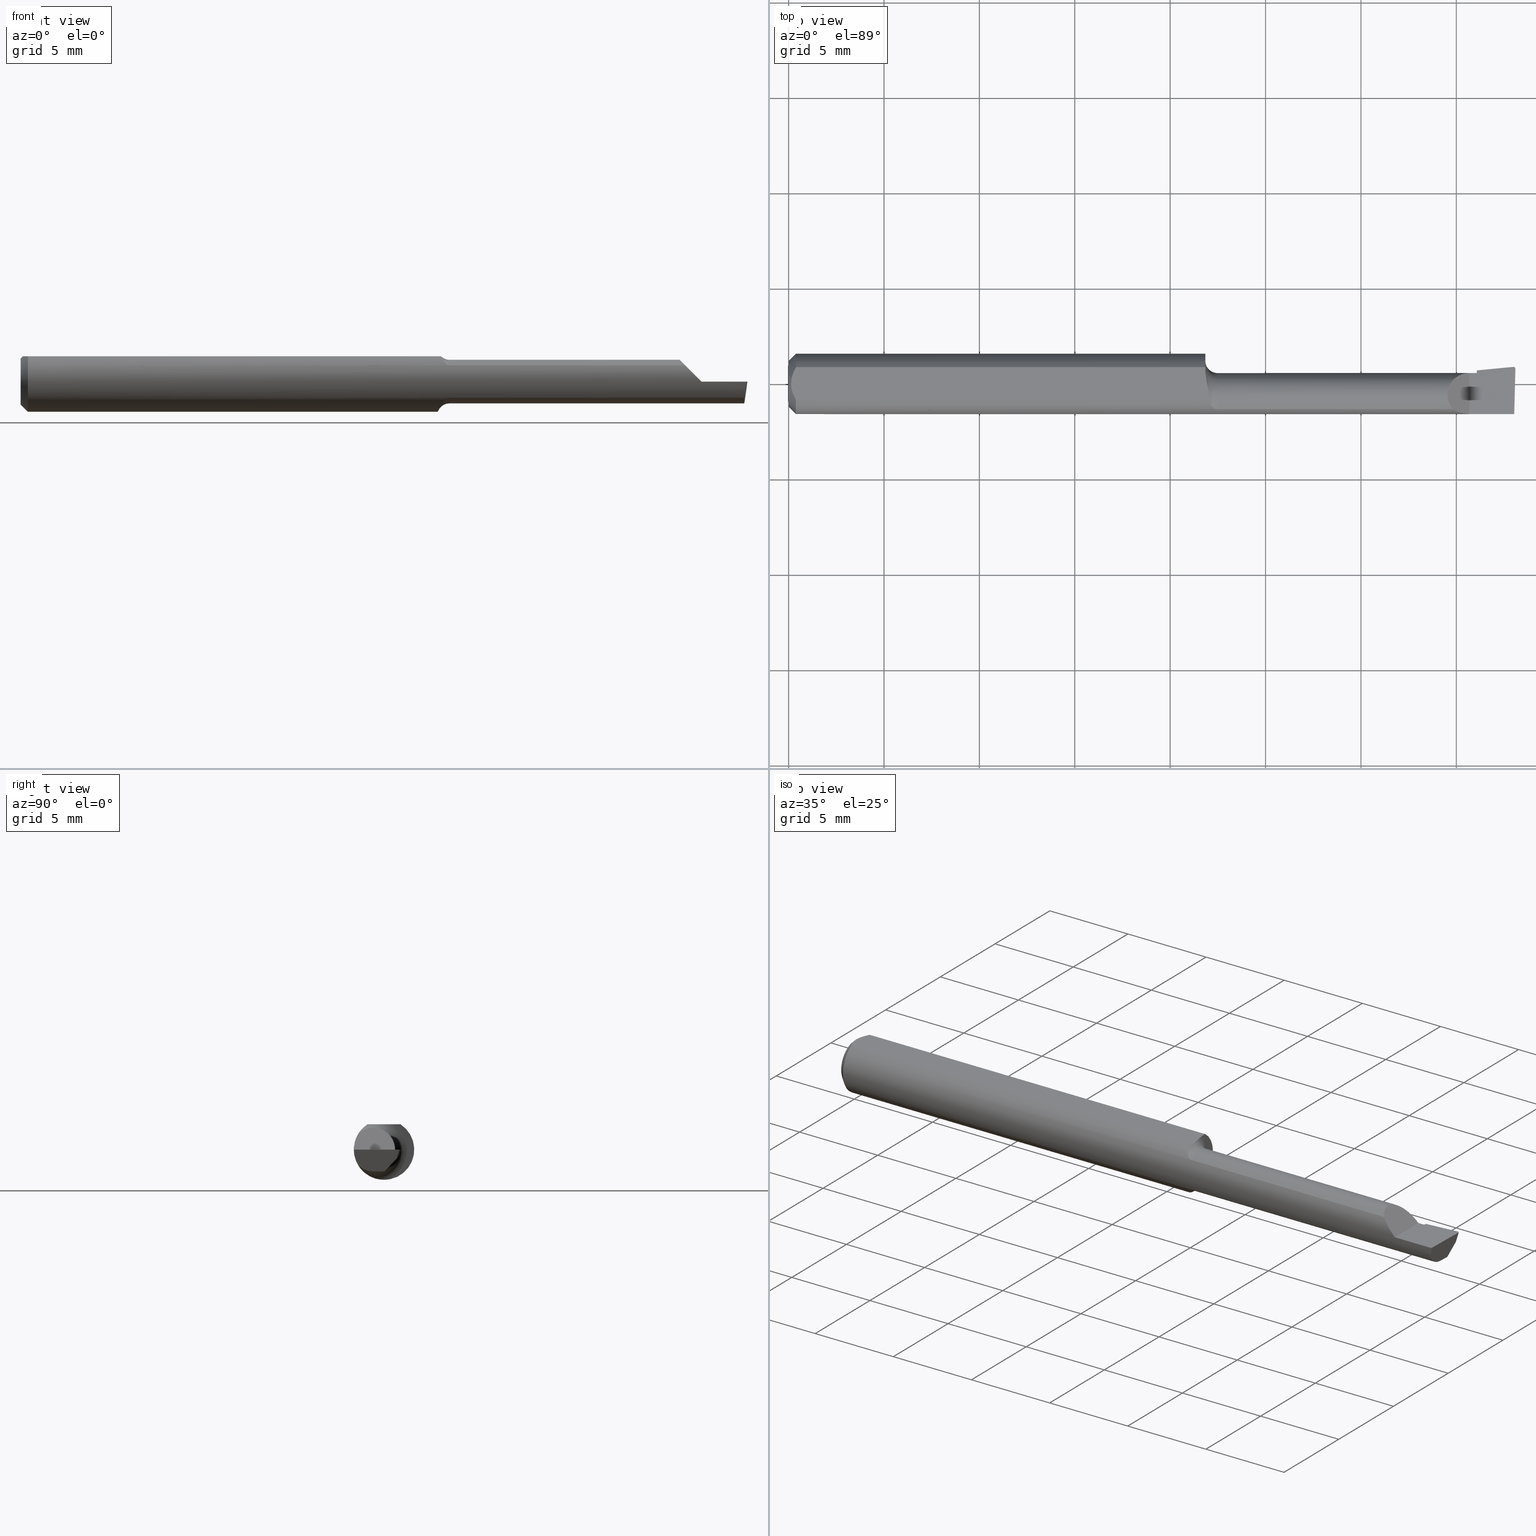
[diagram: canonical four-view strip — front | top / right | iso, engineering-drawing reading convention]
A machine part, canonical four-view strip (front | top / right | iso — engineering-drawing reading convention). The complete STEP part file that produces these views, byte-faithful:
ISO-10303-21;
HEADER;
FILE_DESCRIPTION (( 'STEP AP214' ),
    '1' );
FILE_NAME ('B100600R.STEP',
    '2020-05-08T22:22:54',
    ( '' ),
    ( '' ),
    'SwSTEP 2.0',
    'SolidWorks 2018',
    '' );
FILE_SCHEMA (( 'AUTOMOTIVE_DESIGN' ));
ENDSEC;

DATA;
#1 = CARTESIAN_POINT ( 'NONE',  ( 1.420000000000000151, -0.2500000000000000555, 9.797174393178828616E-18 ) ) ;
#2 = ORIENTED_EDGE ( 'NONE', *, *, #4, .T. ) ;
#3 = DIRECTION ( 'NONE',  ( -0.9922060308645520577, 0.02598182930466777854, 0.1218693434051185687 ) ) ;
#4 = EDGE_CURVE ( 'NONE', #38, #131, #521, .T. ) ;
#5 = CARTESIAN_POINT ( 'NONE',  ( 1.496007920276498648, 0.03524764111161338143, 0.0000000000000000000 ) ) ;
#6 = DIRECTION ( 'NONE',  ( -1.000000000000000000, -5.691349986800549142E-18, 0.0000000000000000000 ) ) ;
#7 = CARTESIAN_POINT ( 'NONE',  ( 0.01500000000000000465, 0.0000000000000000000, -0.06235000000000000264 ) ) ;
#8 = ORIENTED_EDGE ( 'NONE', *, *, #517, .F. ) ;
#9 = ORIENTED_EDGE ( 'NONE', *, *, #179, .F. ) ;
#10 = DIRECTION ( 'NONE',  ( 1.000000000000000000, 5.691349986800549142E-18, 0.0000000000000000000 ) ) ;
#11 =( BOUNDED_CURVE ( )  B_SPLINE_CURVE ( 3, ( #241, #553, #658, #45 ),
 .UNSPECIFIED., .F., .T. ) 
 B_SPLINE_CURVE_WITH_KNOTS ( ( 4, 4 ),
 ( 0.7961532496683325633, 1.360746882514882961 ),
 .UNSPECIFIED. ) 
 CURVE ( )  GEOMETRIC_REPRESENTATION_ITEM ( )  RATIONAL_B_SPLINE_CURVE ( ( 1.000000000000000000, 0.9736121104788257874, 0.9736121104788257874, 1.000000000000000000 ) ) 
 REPRESENTATION_ITEM ( '' )  );
#12 = CONICAL_SURFACE ( 'NONE', #278, 0.06235000000000000264, 0.7853981633974594923 ) ;
#13 = EDGE_CURVE ( 'NONE', #447, #344, #298, .T. ) ;
#14 = AXIS2_PLACEMENT_3D ( 'NONE', #373, #6, #446 ) ;
#15 = VECTOR ( 'NONE', #480, 39.37007874015748854 ) ;
#16 = ORIENTED_EDGE ( 'NONE', *, *, #154, .F. ) ;
#17 = ORIENTED_EDGE ( 'NONE', *, *, #4, .F. ) ;
#18 = EDGE_CURVE ( 'NONE', #490, #111, #426, .T. ) ;
#19 = CARTESIAN_POINT ( 'NONE',  ( 1.500000000000000222, -0.02239999999999999630, -0.04504999999999998589 ) ) ;
#20 = ORIENTED_EDGE ( 'NONE', *, *, #353, .T. ) ;
#21 = CARTESIAN_POINT ( 'NONE',  ( 1.405000000000000249, -0.06235000000000005121, 1.163414459189985436E-17 ) ) ;
#22 = CARTESIAN_POINT ( 'NONE',  ( 0.004999999999989931769, 7.898418181085889318E-16, 0.05235000000000000070 ) ) ;
#23 = CARTESIAN_POINT ( 'NONE',  ( 1.497145952778602185, 0.02443421182165928657, -0.02084524377084977578 ) ) ;
#24 = CARTESIAN_POINT ( 'NONE',  ( 0.8636403934954570705, 0.0002918085034137515572, 0.05234999999999998682 ) ) ;
#25 = CARTESIAN_POINT ( 'NONE',  ( 1.420000000000000151, 0.02794687614419681318, 0.0000000000000000000 ) ) ;
#26 = VECTOR ( 'NONE', #338, 39.37007874015748854 ) ;
#27 = VECTOR ( 'NONE', #268, 39.37007874015748143 ) ;
#28 = VECTOR ( 'NONE', #560, 39.37007874015748143 ) ;
#29 = DIRECTION ( 'NONE',  ( -1.000000000000000000, -5.691349986800549142E-18, -0.0000000000000000000 ) ) ;
#30 =( BOUNDED_CURVE ( )  B_SPLINE_CURVE ( 3, ( #379, #160, #112, #637 ),
 .UNSPECIFIED., .F., .F. ) 
 B_SPLINE_CURVE_WITH_KNOTS ( ( 4, 4 ),
 ( 3.511516179717623753, 3.604018710826140115 ),
 .UNSPECIFIED. ) 
 CURVE ( )  GEOMETRIC_REPRESENTATION_ITEM ( )  RATIONAL_B_SPLINE_CURVE ( ( 1.000000000000000000, 0.9992870672494020834, 0.9992870672494020834, 1.000000000000000000 ) ) 
 REPRESENTATION_ITEM ( '' )  );
#31 = EDGE_LOOP ( 'NONE', ( #647, #53, #75, #109 ) ) ;
#32 = CARTESIAN_POINT ( 'NONE',  ( 0.8681327455766955081, -0.03943215935316556064, -0.04868886658133497053 ) ) ;
#33 = EDGE_CURVE ( 'NONE', #114, #456, #155, .T. ) ;
#34 = DIRECTION ( 'NONE',  ( 1.000000000000000000, 0.0000000000000000000, 0.0000000000000000000 ) ) ;
#35 = EDGE_LOOP ( 'NONE', ( #359, #258, #42 ) ) ;
#36 = SURFACE_STYLE_USAGE ( .BOTH. , #366 ) ;
#37 = ADVANCED_FACE ( 'NONE', ( #139 ), #285, .F. ) ;
#38 = VERTEX_POINT ( 'NONE', #555 ) ;
#39 = VECTOR ( 'NONE', #519, 39.37007874015748143 ) ;
#40 = PLANE ( 'NONE',  #419 ) ;
#41 = VECTOR ( 'NONE', #123, 39.37007874015748854 ) ;
#42 = ORIENTED_EDGE ( 'NONE', *, *, #528, .F. ) ;
#43 = CARTESIAN_POINT ( 'NONE',  ( 1.405000000000000249, -0.2500000000000000555, 1.163414459189985436E-17 ) ) ;
#44 = ORIENTED_EDGE ( 'NONE', *, *, #121, .T. ) ;
#45 = CARTESIAN_POINT ( 'NONE',  ( 1.497433779686218935, -0.06235000000000005121, 3.231995301756451425E-19 ) ) ;
#46 = DIRECTION ( 'NONE',  ( 0.0000000000000000000, 0.0000000000000000000, -1.000000000000000000 ) ) ;
#47 = DIRECTION ( 'NONE',  ( 3.962974135542377331E-18, -0.6963153109074924352, -0.7177360153954949196 ) ) ;
#48 = DIRECTION ( 'NONE',  ( 0.0000000000000000000, 0.9524855432518783971, -0.3045837978228226883 ) ) ;
#49 =( GEOMETRIC_REPRESENTATION_CONTEXT ( 3 ) GLOBAL_UNCERTAINTY_ASSIGNED_CONTEXT ( ( #385 ) ) GLOBAL_UNIT_ASSIGNED_CONTEXT ( ( #129, #242, #249 ) ) REPRESENTATION_CONTEXT ( 'NONE', 'WORKASPACE' ) );
#50 = EDGE_CURVE ( 'NONE', #646, #102, #438, .T. ) ;
#51 = AXIS2_PLACEMENT_3D ( 'NONE', #287, #595, #538 ) ;
#52 = CARTESIAN_POINT ( 'NONE',  ( 0.01500000000000185039, -0.03386738844380016850, 0.05235000000000000070 ) ) ;
#53 = ORIENTED_EDGE ( 'NONE', *, *, #437, .T. ) ;
#54 = ORIENTED_EDGE ( 'NONE', *, *, #13, .T. ) ;
#55 = CARTESIAN_POINT ( 'NONE',  ( 0.0000000000000000000, 0.0000000000000000000, 0.0000000000000000000 ) ) ;
#56 = CARTESIAN_POINT ( 'NONE',  ( 1.420000000000000151, 0.003839959974368444863, -0.03441620828959359585 ) ) ;
#57 = EDGE_CURVE ( 'NONE', #390, #650, #120, .T. ) ;
#58 = LINE ( 'NONE', #466, #635 ) ;
#59 = DIRECTION ( 'NONE',  ( -1.000000000000000000, -5.691349986800549142E-18, -0.0000000000000000000 ) ) ;
#60 = ORIENTED_EDGE ( 'NONE', *, *, #321, .F. ) ;
#61 = ORIENTED_EDGE ( 'NONE', *, *, #400, .T. ) ;
#62 = LINE ( 'NONE', #533, #27 ) ;
#63 = DIRECTION ( 'NONE',  ( 0.0000000000000000000, -1.000000000000000000, 0.0000000000000000000 ) ) ;
#64 = B_SPLINE_CURVE_WITH_KNOTS ( 'NONE', 3,
 ( #467, #100, #515, #200, #255, #621, #568, #311, #675, #364 ),
 .UNSPECIFIED., .F., .F.,
 ( 4, 2, 2, 2, 4 ),
 ( 3.797231421916798275E-07, 0.0004333373953855913481, 0.0006498162315072887087, 0.0007580556495681341905, 0.0008662950676289795640 ),
 .UNSPECIFIED. ) ;
#65 = CARTESIAN_POINT ( 'NONE',  ( 1.510364203804932748, 0.03234793331252792947, -0.01400000000000000376 ) ) ;
#66 = ORIENTED_EDGE ( 'NONE', *, *, #548, .F. ) ;
#67 = CARTESIAN_POINT ( 'NONE',  ( 1.492946566646605078, -0.02239999999999999630, -0.04504999999999998589 ) ) ;
#68 = EDGE_CURVE ( 'NONE', #422, #355, #402, .T. ) ;
#69 = FACE_OUTER_BOUND ( 'NONE', #449, .T. ) ;
#70 = CARTESIAN_POINT ( 'NONE',  ( 0.006064493299689842180, 0.01189382783781397189, 0.05235000000000000070 ) ) ;
#71 = CARTESIAN_POINT ( 'NONE',  ( 1.500000000000000222, 0.1123499999999999915, 0.05234999999999998682 ) ) ;
#72 = AXIS2_PLACEMENT_3D ( 'NONE', #375, #673, #363 ) ;
#73 = PLANE ( 'NONE',  #86 ) ;
#74 = LINE ( 'NONE', #624, #341 ) ;
#75 = ORIENTED_EDGE ( 'NONE', *, *, #535, .T. ) ;
#76 = ORIENTED_EDGE ( 'NONE', *, *, #167, .T. ) ;
#77 = PLANE ( 'NONE',  #14 ) ;
#78 = DIRECTION ( 'NONE',  ( 0.0000000000000000000, 1.000000000000000000, 0.0000000000000000000 ) ) ;
#79 = DIRECTION ( 'NONE',  ( -0.1240019227988994888, -0.3022330132596628971, -0.9451342385281363834 ) ) ;
#80 = LINE ( 'NONE', #421, #28 ) ;
#81 = ORIENTED_EDGE ( 'NONE', *, *, #68, .F. ) ;
#82 = AXIS2_PLACEMENT_3D ( 'NONE', #130, #333, #404 ) ;
#83 = EDGE_CURVE ( 'NONE', #600, #439, #30, .T. ) ;
#84 = CARTESIAN_POINT ( 'NONE',  ( 0.8787757133464818571, -0.05116520334387907737, -0.03564627526859109191 ) ) ;
#85 = PRESENTATION_STYLE_ASSIGNMENT (( #603 ) ) ;
#86 = AXIS2_PLACEMENT_3D ( 'NONE', #571, #575, #468 ) ;
#87 = EDGE_LOOP ( 'NONE', ( #573, #126, #229, #243, #667, #617 ) ) ;
#88 = CARTESIAN_POINT ( 'NONE',  ( 0.8627289934230482071, -0.02215482600002543698, -0.05866202889160986034 ) ) ;
#89 = CARTESIAN_POINT ( 'NONE',  ( 0.8600000000000000977, 0.1123499999999999915, 0.05234999999999998682 ) ) ;
#90 = EDGE_CURVE ( 'NONE', #454, #638, #345, .T. ) ;
#91 = ORIENTED_EDGE ( 'NONE', *, *, #643, .T. ) ;
#92 = DIRECTION ( 'NONE',  ( -1.000000000000000000, -5.691349986800549142E-18, -0.0000000000000000000 ) ) ;
#93 = ADVANCED_FACE ( 'NONE', ( #163 ), #429, .T. ) ;
#94 = VECTOR ( 'NONE', #593, 39.37007874015748143 ) ;
#95 = CARTESIAN_POINT ( 'NONE',  ( 0.01500000000000185039, -0.03386738844380016850, 0.05235000000000000070 ) ) ;
#96 = VERTEX_POINT ( 'NONE', #532 ) ;
#97 = ORIENTED_EDGE ( 'NONE', *, *, #117, .F. ) ;
#98 = CARTESIAN_POINT ( 'NONE',  ( 1.493798075755717214, 0.03075279661035064047, -0.01400000000000000376 ) ) ;
#99 = CARTESIAN_POINT ( 'NONE',  ( 0.01500000000000000465, 0.0000000000000000000, -0.06235000000000000264 ) ) ;
#100 = CARTESIAN_POINT ( 'NONE',  ( 0.8678735227475141700, -0.03849383661596396389, 0.04935695859860206314 ) ) ;
#101 = AXIS2_PLACEMENT_3D ( 'NONE', #71, #493, #170 ) ;
#102 = VERTEX_POINT ( 'NONE', #219 ) ;
#103 = CARTESIAN_POINT ( 'NONE',  ( 0.8661821896890746775, -0.03386738844375222074, 0.05235000000000000070 ) ) ;
#104 =( NAMED_UNIT ( * ) PLANE_ANGLE_UNIT ( ) SI_UNIT ( $, .RADIAN. ) );
#105 = CARTESIAN_POINT ( 'NONE',  ( 0.01216137397042175820, -0.02864146636719541034, 0.05235000000000000070 ) ) ;
#106 = EDGE_CURVE ( 'NONE', #96, #490, #62, .T. ) ;
#107 = DIRECTION ( 'NONE',  ( 0.7071067811865395791, 8.659560562355030233E-17, 0.7071067811865554553 ) ) ;
#108 = VERTEX_POINT ( 'NONE', #187 ) ;
#109 = ORIENTED_EDGE ( 'NONE', *, *, #654, .F. ) ;
#110 = LINE ( 'NONE', #202, #39 ) ;
#111 = VERTEX_POINT ( 'NONE', #220 ) ;
#112 = CARTESIAN_POINT ( 'NONE',  ( 1.495759144559519527, 0.03524165206609278927, 8.547915732267098835E-18 ) ) ;
#113 = CIRCLE ( 'NONE', #497, 0.07004999999999993177 ) ;
#114 = VERTEX_POINT ( 'NONE', #7 ) ;
#115 = ORIENTED_EDGE ( 'NONE', *, *, #388, .F. ) ;
#116 = LENGTH_MEASURE_WITH_UNIT ( LENGTH_MEASURE( 0.02539999999999999897 ), #225 );
#117 = EDGE_CURVE ( 'NONE', #318, #344, #149, .T. ) ;
#118 = CARTESIAN_POINT ( 'NONE',  ( 1.420000000000000151, -0.02239999999999999630, 0.0000000000000000000 ) ) ;
#119 = ORIENTED_EDGE ( 'NONE', *, *, #659, .T. ) ;
#120 = LINE ( 'NONE', #157, #329 ) ;
#121 = EDGE_CURVE ( 'NONE', #456, #185, #642, .T. ) ;
#122 = ORIENTED_EDGE ( 'NONE', *, *, #283, .T. ) ;
#123 = DIRECTION ( 'NONE',  ( -0.9953961983671800740, -0.09584575252021028391, 2.116984158397003268E-18 ) ) ;
#124 = ORIENTED_EDGE ( 'NONE', *, *, #68, .T. ) ;
#125 = VECTOR ( 'NONE', #411, 39.37007874015748143 ) ;
#126 = ORIENTED_EDGE ( 'NONE', *, *, #18, .F. ) ;
#127 = PRODUCT_DEFINITION_SHAPE ( 'NONE', 'NONE',  #399 ) ;
#128 = VERTEX_POINT ( 'NONE', #148 ) ;
#129 =( CONVERSION_BASED_UNIT ( 'INCH', #116 ) LENGTH_UNIT ( ) NAMED_UNIT ( #416 ) );
#130 = CARTESIAN_POINT ( 'NONE',  ( 1.509953961983671933, 0.03660845752520203861, 0.0000000000000000000 ) ) ;
#131 = VERTEX_POINT ( 'NONE', #475 ) ;
#132 = CARTESIAN_POINT ( 'NONE',  ( 1.494167560590867749, 0.03076208604347172026, -0.01402709660331438214 ) ) ;
#133 = CARTESIAN_POINT ( 'NONE',  ( 0.8602764403634772794, -0.002103274276246023915, -0.06268864719924562012 ) ) ;
#134 = ORIENTED_EDGE ( 'NONE', *, *, #135, .T. ) ;
#135 = EDGE_CURVE ( 'NONE', #239, #447, #80, .T. ) ;
#136 =( BOUNDED_CURVE ( )  B_SPLINE_CURVE ( 3, ( #201, #206, #256, #253 ),
 .UNSPECIFIED., .F., .F. ) 
 B_SPLINE_CURVE_WITH_KNOTS ( ( 4, 4 ),
 ( 3.156599629463156642, 4.715023529952364179 ),
 .UNSPECIFIED. ) 
 CURVE ( )  GEOMETRIC_REPRESENTATION_ITEM ( )  RATIONAL_B_SPLINE_CURVE ( ( 1.000000000000000000, 0.8076450242550528014, 0.8076450242550528014, 1.000000000000000000 ) ) 
 REPRESENTATION_ITEM ( '' )  );
#137 = DIRECTION ( 'NONE',  ( 1.000000000000000000, 5.691349986800549142E-18, 0.0000000000000000000 ) ) ;
#138 = ORIENTED_EDGE ( 'NONE', *, *, #321, .T. ) ;
#139 = FACE_OUTER_BOUND ( 'NONE', #458, .T. ) ;
#140 = ORIENTED_EDGE ( 'NONE', *, *, #491, .T. ) ;
#141 = ADVANCED_FACE ( 'NONE', ( #484 ), #403, .F. ) ;
#142 = CARTESIAN_POINT ( 'NONE',  ( 1.405000000000000249, -0.06235000000000005121, 1.163414459189985436E-17 ) ) ;
#143 = AXIS2_PLACEMENT_3D ( 'NONE', #314, #3, #207 ) ;
#144 = DIRECTION ( 'NONE',  ( 1.000000000000000000, 5.691349986800549142E-18, 0.0000000000000000000 ) ) ;
#145 = STYLED_ITEM ( 'NONE', ( #85 ), #578 ) ;
#146 = EDGE_CURVE ( 'NONE', #372, #318, #262, .T. ) ;
#147 = CARTESIAN_POINT ( 'NONE',  ( 0.8599999999999998757, 0.01903747135664263929, 0.05235000000000001458 ) ) ;
#148 = CARTESIAN_POINT ( 'NONE',  ( 1.499880855614015740, 0.03110005946548960454, 2.797005382439232540E-20 ) ) ;
#149 =( BOUNDED_CURVE ( )  B_SPLINE_CURVE ( 3, ( #152, #577, #526, #264 ),
 .UNSPECIFIED., .F., .T. ) 
 B_SPLINE_CURVE_WITH_KNOTS ( ( 4, 4 ),
 ( 5.546277306536648410, 7.853981633974482790 ),
 .UNSPECIFIED. ) 
 CURVE ( )  GEOMETRIC_REPRESENTATION_ITEM ( )  RATIONAL_B_SPLINE_CURVE ( ( 1.000000000000000000, 0.6033122017619977351, 0.6033122017619977351, 1.000000000000000000 ) ) 
 REPRESENTATION_ITEM ( '' )  );
#150 = ORIENTED_EDGE ( 'NONE', *, *, #528, .T. ) ;
#151 = DIRECTION ( 'NONE',  ( -1.224646799147353947E-16, 0.0000000000000000000, -1.000000000000000000 ) ) ;
#152 = CARTESIAN_POINT ( 'NONE',  ( 1.371638225962093838, -0.05267366071428594004, 0.03336177403790593909 ) ) ;
#153 = ORIENTED_EDGE ( 'NONE', *, *, #602, .T. ) ;
#154 = EDGE_CURVE ( 'NONE', #454, #597, #266, .T. ) ;
#155 = CIRCLE ( 'NONE', #337, 0.06235000000000000264 ) ;
#156 = CARTESIAN_POINT ( 'NONE',  ( 1.493922339957150847, 0.03076476189203172784, -0.01400000000000001764 ) ) ;
#157 = CARTESIAN_POINT ( 'NONE',  ( 1.152500000000000080, -0.05267366071428578739, -0.03336177403790609869 ) ) ;
#158 = CYLINDRICAL_SURFACE ( 'NONE', #431, 0.004000000000000000083 ) ;
#159 = FACE_OUTER_BOUND ( 'NONE', #334, .T. ) ;
#160 = CARTESIAN_POINT ( 'NONE',  ( 1.495883579913029671, 0.03524764111161338836, 8.532676796529436165E-18 ) ) ;
#161 = CYLINDRICAL_SURFACE ( 'NONE', #622, 0.04504999999999996507 ) ;
#162 = DIRECTION ( 'NONE',  ( -5.691349986800549142E-18, 1.000000000000000000, 0.0000000000000000000 ) ) ;
#163 = FACE_OUTER_BOUND ( 'NONE', #280, .T. ) ;
#164 = ORIENTED_EDGE ( 'NONE', *, *, #33, .T. ) ;
#165 = ORIENTED_EDGE ( 'NONE', *, *, #474, .T. ) ;
#166 = CARTESIAN_POINT ( 'NONE',  ( 1.492874371667013866, -0.04428776192107812537, -0.04097143695815293196 ) ) ;
#167 = EDGE_CURVE ( 'NONE', #183, #102, #110, .T. ) ;
#168 = CARTESIAN_POINT ( 'NONE',  ( 1.492650040401416689, -0.03372388044486962499, -0.04504999999999997201 ) ) ;
#169 = DIRECTION ( 'NONE',  ( 1.000000000000000000, 5.691349986800549142E-18, 0.0000000000000000000 ) ) ;
#170 = DIRECTION ( 'NONE',  ( 0.0000000000000000000, 1.000000000000000000, -7.598598113218357399E-17 ) ) ;
#171 = AXIS2_PLACEMENT_3D ( 'NONE', #215, #579, #273 ) ;
#172 = VECTOR ( 'NONE', #625, 39.37007874015748143 ) ;
#173 = LINE ( 'NONE', #343, #41 ) ;
#174 = ORIENTED_EDGE ( 'NONE', *, *, #517, .T. ) ;
#175 = ORIENTED_EDGE ( 'NONE', *, *, #502, .F. ) ;
#176 = PLANE ( 'NONE',  #598 ) ;
#177 = PRESENTATION_LAYER_ASSIGNMENT (  '', '', ( #145 ) ) ;
#178 = ORIENTED_EDGE ( 'NONE', *, *, #353, .F. ) ;
#179 = EDGE_CURVE ( 'NONE', #646, #108, #445, .T. ) ;
#180 = CARTESIAN_POINT ( 'NONE',  ( 0.8600000000000000977, -0.02239999999999999977, 0.0000000000000000000 ) ) ;
#181 = APPLICATION_PROTOCOL_DEFINITION ( 'draft international standard', 'automotive_design', 1998, #639 ) ;
#182 = CARTESIAN_POINT ( 'NONE',  ( 0.8600000000000000977, 0.01155624999999977677, -0.06126969549408178839 ) ) ;
#183 = VERTEX_POINT ( 'NONE', #257 ) ;
#184 = DIRECTION ( 'NONE',  ( 5.691349986800549142E-18, -1.000000000000000000, 7.598598113218357399E-17 ) ) ;
#185 = VERTEX_POINT ( 'NONE', #205 ) ;
#186 = EDGE_CURVE ( 'NONE', #239, #128, #209, .T. ) ;
#187 = CARTESIAN_POINT ( 'NONE',  ( 1.420000000000000151, 0.02794687614419801361, 1.835460370743176819E-16 ) ) ;
#188 = ADVANCED_FACE ( 'NONE', ( #478 ), #628, .F. ) ;
#189 = CARTESIAN_POINT ( 'NONE',  ( 0.0000000000000000000, 0.0000000000000000000, 0.0000000000000000000 ) ) ;
#190 = ORIENTED_EDGE ( 'NONE', *, *, #186, .F. ) ;
#191 = CARTESIAN_POINT ( 'NONE',  ( 1.420000000000000151, -0.001476535193823043943, -0.03989625446711346501 ) ) ;
#192 = ADVANCED_FACE ( 'NONE', ( #69 ), #423, .F. ) ;
#193 = FACE_OUTER_BOUND ( 'NONE', #590, .T. ) ;
#194 = DIRECTION ( 'NONE',  ( -1.000000000000000000, -5.691349986800549142E-18, -0.0000000000000000000 ) ) ;
#195 = ORIENTED_EDGE ( 'NONE', *, *, #331, .T. ) ;
#196 = DIRECTION ( 'NONE',  ( -1.000000000000000000, -0.0000000000000000000, -0.0000000000000000000 ) ) ;
#197 = ORIENTED_EDGE ( 'NONE', *, *, #425, .F. ) ;
#198 = CARTESIAN_POINT ( 'NONE',  ( 0.01500000000000000465, 0.0000000000000000000, 0.0000000000000000000 ) ) ;
#199 = CARTESIAN_POINT ( 'NONE',  ( 0.01218518006020415795, 0.02868529347538067639, 0.05235000000000000070 ) ) ;
#200 = CARTESIAN_POINT ( 'NONE',  ( 0.8740738374070420313, -0.04761084945882115144, 0.04033650601908230632 ) ) ;
#201 = CARTESIAN_POINT ( 'NONE',  ( 1.494167560590867749, 0.03076208604347172026, -0.01402709660331438214 ) ) ;
#202 = CARTESIAN_POINT ( 'NONE',  ( 1.420000000000000151, 0.003839959974368444863, -0.03441620828959359585 ) ) ;
#203 = COLOUR_RGB ( '',0.7529411764705882248, 0.7529411764705882248, 0.7529411764705882248 ) ;
#204 = EDGE_LOOP ( 'NONE', ( #541, #119, #174, #150 ) ) ;
#205 = CARTESIAN_POINT ( 'NONE',  ( 0.004999999999989931769, 7.898418181085889318E-16, 0.05235000000000000070 ) ) ;
#206 = CARTESIAN_POINT ( 'NONE',  ( 1.496461277308440030, 0.03065349357661047158, -0.01436668378927336530 ) ) ;
#207 = DIRECTION ( 'NONE',  ( 0.1219104985252538603, 0.0000000000000000000, 0.9925410975618711440 ) ) ;
#208 = ORIENTED_EDGE ( 'NONE', *, *, #83, .F. ) ;
#209 = LINE ( 'NONE', #367, #604 ) ;
#210 = EDGE_CURVE ( 'NONE', #102, #454, #551, .T. ) ;
#211 = CARTESIAN_POINT ( 'NONE',  ( 0.009669996313769784607, 0.02323004575534281385, 0.05234999999999998682 ) ) ;
#212 = DIRECTION ( 'NONE',  ( -1.000000000000000000, 0.0000000000000000000, 1.224646799147353947E-16 ) ) ;
#213 = EDGE_LOOP ( 'NONE', ( #296, #614, #76, #504 ) ) ;
#214 = UNCERTAINTY_MEASURE_WITH_UNIT (LENGTH_MEASURE( 1.000000000000000082E-05 ), #668, 'distance_accuracy_value', 'NONE');
#215 = CARTESIAN_POINT ( 'NONE',  ( 0.0000000000000000000, 0.0000000000000000000, 0.0000000000000000000 ) ) ;
#216 = VECTOR ( 'NONE', #669, 39.37007874015748143 ) ;
#217 = ORIENTED_EDGE ( 'NONE', *, *, #294, .T. ) ;
#218 = AXIS2_PLACEMENT_3D ( 'NONE', #319, #151, #212 ) ;
#219 = CARTESIAN_POINT ( 'NONE',  ( 1.420000000000000151, 0.01811171944543690446, -0.01970540757188763911 ) ) ;
#220 = CARTESIAN_POINT ( 'NONE',  ( 0.8600000000000000977, 0.02414546164772663275, 0.05235000000000000070 ) ) ;
#221 = EDGE_LOOP ( 'NONE', ( #124, #20, #190, #476, #424, #587 ) ) ;
#222 = MECHANICAL_DESIGN_GEOMETRIC_PRESENTATION_REPRESENTATION (  '', ( #145 ), #259 ) ;
#223 = COLOUR_RGB ( '',0.7529411764705882248, 0.7529411764705882248, 0.7529411764705882248 ) ;
#224 = EDGE_CURVE ( 'NONE', #131, #38, #629, .T. ) ;
#225 =( LENGTH_UNIT ( ) NAMED_UNIT ( * ) SI_UNIT ( $, .METRE. ) );
#226 = CARTESIAN_POINT ( 'NONE',  ( 0.8850000000000001199, -0.05267366071428589841, 0.03336177403790596685 ) ) ;
#227 = EDGE_CURVE ( 'NONE', #38, #185, #591, .T. ) ;
#228 = APPLICATION_PROTOCOL_DEFINITION ( 'draft international standard', 'automotive_design', 1998, #263 ) ;
#229 = ORIENTED_EDGE ( 'NONE', *, *, #106, .F. ) ;
#230 = DIRECTION ( 'NONE',  ( 0.1240019227988994610, 0.3022330132596628416, 0.9451342385281363834 ) ) ;
#231 = FACE_OUTER_BOUND ( 'NONE', #213, .T. ) ;
#232 = CARTESIAN_POINT ( 'NONE',  ( -2.563953169053420290E-19, 0.02264999999999995489, 1.836970198721030427E-16 ) ) ;
#233 = LINE ( 'NONE', #620, #94 ) ;
#234 = CARTESIAN_POINT ( 'NONE',  ( 1.381685276638327631, -0.05903713403021961653, 0.02331472336167206283 ) ) ;
#235 = ORIENTED_EDGE ( 'NONE', *, *, #643, .F. ) ;
#236 = CARTESIAN_POINT ( 'NONE',  ( 1.420000000000000151, 0.02442187865123201032, -0.01147666661066421533 ) ) ;
#237 = CIRCLE ( 'NONE', #251, 0.06235000000000000264 ) ;
#238 = ORIENTED_EDGE ( 'NONE', *, *, #13, .F. ) ;
#239 = VERTEX_POINT ( 'NONE', #529 ) ;
#240 = CARTESIAN_POINT ( 'NONE',  ( 1.498346190944504830, 0.03524764111161336061, 8.231093924805310805E-18 ) ) ;
#241 = CARTESIAN_POINT ( 'NONE',  ( 1.493589448587071544, -0.05267366071428578739, -0.03336177403790609869 ) ) ;
#242 =( NAMED_UNIT ( * ) PLANE_ANGLE_UNIT ( ) SI_UNIT ( $, .RADIAN. ) );
#243 = ORIENTED_EDGE ( 'NONE', *, *, #474, .F. ) ;
#244 = EDGE_CURVE ( 'NONE', #539, #325, #279, .T. ) ;
#245 = SURFACE_STYLE_FILL_AREA ( #630 ) ;
#246 = ADVANCED_FACE ( 'NONE', ( #159 ), #354, .T. ) ;
#247 = CARTESIAN_POINT ( 'NONE',  ( 0.8639433730835746061, -0.0009488278625737159733, 0.05234999999999998682 ) ) ;
#248 = EDGE_LOOP ( 'NONE', ( #208, #284, #492, #320 ) ) ;
#249 =( NAMED_UNIT ( * ) SI_UNIT ( $, .STERADIAN. ) SOLID_ANGLE_UNIT ( ) );
#250 = ADVANCED_FACE ( 'NONE', ( #271 ), #158, .T. ) ;
#251 = AXIS2_PLACEMENT_3D ( 'NONE', #448, #395, #78 ) ;
#252 = DIRECTION ( 'NONE',  ( 0.0000000000000000000, 0.0000000000000000000, -1.000000000000000000 ) ) ;
#253 = CARTESIAN_POINT ( 'NONE',  ( 1.497145952778602185, 0.02443421182165928657, -0.02084524377084977578 ) ) ;
#254 = ORIENTED_EDGE ( 'NONE', *, *, #146, .F. ) ;
#255 = CARTESIAN_POINT ( 'NONE',  ( 0.8756610829636815030, -0.04915643512136039922, 0.03841395140597850949 ) ) ;
#256 = CARTESIAN_POINT ( 'NONE',  ( 1.497690526998707305, 0.02804183703948718784, -0.01718068703854501098 ) ) ;
#257 = CARTESIAN_POINT ( 'NONE',  ( 1.420000000000000151, 0.02364685013702381988, -0.01400000000000000203 ) ) ;
#258 = ORIENTED_EDGE ( 'NONE', *, *, #154, .T. ) ;
#259 =( GEOMETRIC_REPRESENTATION_CONTEXT ( 3 ) GLOBAL_UNCERTAINTY_ASSIGNED_CONTEXT ( ( #214 ) ) GLOBAL_UNIT_ASSIGNED_CONTEXT ( ( #668, #104, #304 ) ) REPRESENTATION_CONTEXT ( 'NONE', 'WORKASPACE' ) );
#260 = EDGE_CURVE ( 'NONE', #600, #325, #306, .T. ) ;
#261 = DIRECTION ( 'NONE',  ( -1.000000000000000000, -0.0000000000000000000, -0.0000000000000000000 ) ) ;
#262 = LINE ( 'NONE', #469, #572 ) ;
#263 = APPLICATION_CONTEXT ( 'automotive_design' ) ;
#264 = CARTESIAN_POINT ( 'NONE',  ( 1.405000000000000249, 0.02264999999999992714, 1.163414459189985436E-17 ) ) ;
#265 = CIRCLE ( 'NONE', #564, 0.04504999999999993732 ) ;
#266 = LINE ( 'NONE', #418, #663 ) ;
#267 = PLANE ( 'NONE',  #547 ) ;
#268 = DIRECTION ( 'NONE',  ( 1.000000000000000000, 0.0000000000000000000, 0.0000000000000000000 ) ) ;
#269 = B_SPLINE_CURVE_WITH_KNOTS ( 'NONE', 3,
 ( #22, #420, #70, #211, #199, #370 ),
 .UNSPECIFIED., .F., .F.,
 ( 4, 2, 4 ),
 ( 0.003037199019464981685, 0.003488061124369676216, 0.003938923229274370746 ),
 .UNSPECIFIED. ) ;
#270 = EDGE_CURVE ( 'NONE', #128, #600, #398, .T. ) ;
#271 = FACE_OUTER_BOUND ( 'NONE', #465, .T. ) ;
#272 = ORIENTED_EDGE ( 'NONE', *, *, #425, .T. ) ;
#273 = DIRECTION ( 'NONE',  ( 0.0000000000000000000, 0.0000000000000000000, 1.000000000000000000 ) ) ;
#274 = ORIENTED_EDGE ( 'NONE', *, *, #90, .T. ) ;
#275 = CARTESIAN_POINT ( 'NONE',  ( 1.420000000000000151, -0.02239999999999999630, 0.0000000000000000000 ) ) ;
#276 = ORIENTED_EDGE ( 'NONE', *, *, #283, .F. ) ;
#277 = SURFACE_STYLE_FILL_AREA ( #634 ) ;
#278 = AXIS2_PLACEMENT_3D ( 'NONE', #198, #297, #252 ) ;
#279 =( BOUNDED_CURVE ( )  B_SPLINE_CURVE ( 3, ( #633, #156, #378, #428 ),
 .UNSPECIFIED., .F., .T. ) 
 B_SPLINE_CURVE_WITH_KNOTS ( ( 4, 4 ),
 ( 3.064097098354601645, 3.156599629463156642 ),
 .UNSPECIFIED. ) 
 CURVE ( )  GEOMETRIC_REPRESENTATION_ITEM ( )  RATIONAL_B_SPLINE_CURVE ( ( 1.000000000000000000, 0.9992870672494015283, 0.9992870672494015283, 1.000000000000000000 ) ) 
 REPRESENTATION_ITEM ( '' )  );
#280 = EDGE_LOOP ( 'NONE', ( #122, #589, #217 ) ) ;
#281 = DIRECTION ( 'NONE',  ( 1.000000000000000000, 0.0000000000000000000, 0.0000000000000000000 ) ) ;
#282 = CARTESIAN_POINT ( 'NONE',  ( 1.500053207916534070, 0.03152013807843875165, 0.001313657550806788610 ) ) ;
#283 = EDGE_CURVE ( 'NONE', #328, #490, #237, .T. ) ;
#284 = ORIENTED_EDGE ( 'NONE', *, *, #260, .T. ) ;
#285 = TOROIDAL_SURFACE ( 'NONE', #406, 0.07004999999999993177, 0.02500000000000000139 ) ;
#286 = DIRECTION ( 'NONE',  ( 5.691349986800549142E-18, -1.000000000000000000, 0.0000000000000000000 ) ) ;
#287 = CARTESIAN_POINT ( 'NONE',  ( 0.01500000000000000465, 0.0000000000000000000, 0.0000000000000000000 ) ) ;
#288 = VECTOR ( 'NONE', #613, 39.37007874015748854 ) ;
#289 = ORIENTED_EDGE ( 'NONE', *, *, #106, .T. ) ;
#290 = DIRECTION ( 'NONE',  ( 0.0000000000000000000, 0.0000000000000000000, 1.000000000000000000 ) ) ;
#291 = VECTOR ( 'NONE', #382, 39.37007874015748143 ) ;
#292 = DIRECTION ( 'NONE',  ( 0.0000000000000000000, 0.0000000000000000000, -1.000000000000000000 ) ) ;
#293 = VECTOR ( 'NONE', #464, 39.37007874015748143 ) ;
#294 = EDGE_CURVE ( 'NONE', #111, #328, #113, .T. ) ;
#295 = CARTESIAN_POINT ( 'NONE',  ( 1.496007920276498648, 0.03524764111161338143, 0.0000000000000000000 ) ) ;
#296 = ORIENTED_EDGE ( 'NONE', *, *, #179, .T. ) ;
#297 = DIRECTION ( 'NONE',  ( 1.000000000000000000, 0.0000000000000000000, 0.0000000000000000000 ) ) ;
#298 = LINE ( 'NONE', #43, #125 ) ;
#299 = ORIENTED_EDGE ( 'NONE', *, *, #331, .F. ) ;
#300 = AXIS2_PLACEMENT_3D ( 'NONE', #360, #196, #457 ) ;
#301 = CARTESIAN_POINT ( 'NONE',  ( 0.8606843363331831975, 0.01400540109987307574, 0.05235000000000000070 ) ) ;
#302 = ADVANCED_FACE ( 'NONE', ( #640 ), #176, .T. ) ;
#303 = DIRECTION ( 'NONE',  ( 0.0000000000000000000, 0.0000000000000000000, 1.000000000000000000 ) ) ;
#304 =( NAMED_UNIT ( * ) SI_UNIT ( $, .STERADIAN. ) SOLID_ANGLE_UNIT ( ) );
#305 = DIRECTION ( 'NONE',  ( -0.1240019227988995026, -0.3022330132596629526, -0.9451342385281364944 ) ) ;
#306 = LINE ( 'NONE', #396, #514 ) ;
#307 = EDGE_LOOP ( 'NONE', ( #556, #386 ) ) ;
#308 = VECTOR ( 'NONE', #107, 39.37007874015748143 ) ;
#309 = LINE ( 'NONE', #232, #326 ) ;
#310 = ORIENTED_EDGE ( 'NONE', *, *, #210, .F. ) ;
#311 = CARTESIAN_POINT ( 'NONE',  ( 0.8821345559677666870, -0.05240678568573022694, 0.03378794548805846149 ) ) ;
#312 = AXIS2_PLACEMENT_3D ( 'NONE', #619, #513, #563 ) ;
#313 = DIRECTION ( 'NONE',  ( 0.0000000000000000000, -1.000000000000000000, 4.268512490100411895E-17 ) ) ;
#314 = CARTESIAN_POINT ( 'NONE',  ( 1.490592351376191838, -0.04680632761517488499, -0.05901368851803156373 ) ) ;
#315 = CARTESIAN_POINT ( 'NONE',  ( 0.0000000000000000000, -0.02240000000000000324, 0.0000000000000000000 ) ) ;
#316 = DIRECTION ( 'NONE',  ( 0.02617694830784732252, 0.9996573249755579260, -3.158139334220720673E-18 ) ) ;
#317 = ORIENTED_EDGE ( 'NONE', *, *, #260, .F. ) ;
#318 = VERTEX_POINT ( 'NONE', #645 ) ;
#319 = CARTESIAN_POINT ( 'NONE',  ( 1.500000000000000222, -0.2500000000000000555, 0.0000000000000000000 ) ) ;
#320 = ORIENTED_EDGE ( 'NONE', *, *, #437, .F. ) ;
#321 = EDGE_CURVE ( 'NONE', #447, #318, #522, .T. ) ;
#322 = CARTESIAN_POINT ( 'NONE',  ( 0.009678036133109307534, -0.02325481837211496039, 0.05235000000000000070 ) ) ;
#323 = PRODUCT ( 'B100600R', 'B100600R', '', ( #470 ) ) ;
#324 = DIRECTION ( 'NONE',  ( -1.000000000000000000, -0.0000000000000000000, -0.0000000000000000000 ) ) ;
#325 = VERTEX_POINT ( 'NONE', #132 ) ;
#326 = VECTOR ( 'NONE', #137, 39.37007874015748143 ) ;
#327 = CLOSED_SHELL ( 'NONE', ( #462, #666, #407, #302, #608, #246, #356, #192, #141, #460, #412, #37, #93, #615, #671, #558, #509, #188, #250 ) ) ;
#328 = VERTEX_POINT ( 'NONE', #489 ) ;
#329 = VECTOR ( 'NONE', #606, 39.37007874015748143 ) ;
#330 = ORIENTED_EDGE ( 'NONE', *, *, #57, .T. ) ;
#331 = EDGE_CURVE ( 'NONE', #372, #650, #265, .T. ) ;
#332 = ORIENTED_EDGE ( 'NONE', *, *, #33, .F. ) ;
#333 = DIRECTION ( 'NONE',  ( -0.09165774897393340337, 0.9519021185660613282, -0.2923717047227305521 ) ) ;
#334 = EDGE_LOOP ( 'NONE', ( #536, #61, #134, #138, #254, #576, #441, #332, #554, #289, #276, #115 ) ) ;
#335 = CARTESIAN_POINT ( 'NONE',  ( 0.8850000000000001199, -0.05267366071428587759, -0.03336177403790597379 ) ) ;
#336 = CARTESIAN_POINT ( 'NONE',  ( 1.393107270290912636, -0.06235000000000000264, 0.01189272970908746181 ) ) ;
#337 = AXIS2_PLACEMENT_3D ( 'NONE', #656, #611, #303 ) ;
#338 = DIRECTION ( 'NONE',  ( -0.02617694830784731558, -0.9996573249755579260, 4.246274422243624484E-17 ) ) ;
#339 = DIRECTION ( 'NONE',  ( 0.0000000000000000000, -1.000000000000000000, 0.0000000000000000000 ) ) ;
#340 = CARTESIAN_POINT ( 'NONE',  ( 1.499880855614015740, 0.03110005946548960454, 2.797005382439232540E-20 ) ) ;
#341 = VECTOR ( 'NONE', #566, 39.37007874015748854 ) ;
#342 = ORIENTED_EDGE ( 'NONE', *, *, #83, .T. ) ;
#343 = CARTESIAN_POINT ( 'NONE',  ( 1.497745910775796441, 0.001009611647418858643, -0.04504999999999998589 ) ) ;
#344 = VERTEX_POINT ( 'NONE', #540 ) ;
#345 = CIRCLE ( 'NONE', #442, 0.04504999999999999283 ) ;
#346 = CARTESIAN_POINT ( 'NONE',  ( 0.8832409546724755423, -0.05267366071428587065, -0.03336177403790598073 ) ) ;
#347 = DIRECTION ( 'NONE',  ( -1.000000000000000000, -5.691349986800549142E-18, 0.0000000000000000000 ) ) ;
#348 = LINE ( 'NONE', #282, #641 ) ;
#349 = CARTESIAN_POINT ( 'NONE',  ( 0.8850000000000001199, -0.05267366071428587759, -0.03336177403790597379 ) ) ;
#350 = CARTESIAN_POINT ( 'NONE',  ( 0.8726126354017770259, -0.04600867268841657420, -0.04219264322731243466 ) ) ;
#351 = CARTESIAN_POINT ( 'NONE',  ( 1.493589448587071544, -0.05267366071428578739, -0.03336177403790609869 ) ) ;
#352 = CARTESIAN_POINT ( 'NONE',  ( 1.420000000000000151, -0.02239999999999999630, -0.04504999999999998589 ) ) ;
#353 = EDGE_CURVE ( 'NONE', #355, #128, #348, .T. ) ;
#354 = CYLINDRICAL_SURFACE ( 'NONE', #394, 0.06235000000000000264 ) ;
#355 = VERTEX_POINT ( 'NONE', #23 ) ;
#356 = ADVANCED_FACE ( 'NONE', ( #616 ), #391, .F. ) ;
#357 = EDGE_LOOP ( 'NONE', ( #510, #2 ) ) ;
#358 = LINE ( 'NONE', #65, #612 ) ;
#359 = ORIENTED_EDGE ( 'NONE', *, *, #90, .F. ) ;
#360 = CARTESIAN_POINT ( 'NONE',  ( 0.0000000000000000000, 0.0000000000000000000, 0.0000000000000000000 ) ) ;
#361 = CARTESIAN_POINT ( 'NONE',  ( 1.493548986703517656, 0.0006054938231418560256, -0.04504999999999999283 ) ) ;
#362 = CYLINDRICAL_SURFACE ( 'NONE', #485, 0.004000000000000000083 ) ;
#363 = DIRECTION ( 'NONE',  ( -0.7071067811865516806, 0.0000000000000000000, 0.7071067811865431318 ) ) ;
#364 = CARTESIAN_POINT ( 'NONE',  ( 0.8850000000000001199, -0.05267366071428589841, 0.03336177403790596685 ) ) ;
#365 = ORIENTED_EDGE ( 'NONE', *, *, #227, .T. ) ;
#366 = SURFACE_SIDE_STYLE ('',( #245 ) ) ;
#367 = CARTESIAN_POINT ( 'NONE',  ( 1.492525117049605665, -0.2498042633013223268, 9.154091479201542017E-19 ) ) ;
#368 = AXIS2_PLACEMENT_3D ( 'NONE', #55, #618, #664 ) ;
#369 = EDGE_CURVE ( 'NONE', #390, #626, #570, .T. ) ;
#370 = CARTESIAN_POINT ( 'NONE',  ( 0.01500000000000000465, 0.03386738844375223462, 0.05234999999999997988 ) ) ;
#371 = CARTESIAN_POINT ( 'NONE',  ( 0.006057557792978140489, -0.01187252718384441616, 0.05234999999999998682 ) ) ;
#372 = VERTEX_POINT ( 'NONE', #226 ) ;
#373 = CARTESIAN_POINT ( 'NONE',  ( 1.420000000000000151, 0.02794687614419681318, 0.0000000000000000000 ) ) ;
#374 = VERTEX_POINT ( 'NONE', #103 ) ;
#375 = CARTESIAN_POINT ( 'NONE',  ( 1.405000000000000249, -0.2500000000000000555, 1.163414459189985436E-17 ) ) ;
#376 = AXIS2_PLACEMENT_3D ( 'NONE', #275, #483, #63 ) ;
#377 = CIRCLE ( 'NONE', #452, 0.04504999999999996507 ) ;
#378 = CARTESIAN_POINT ( 'NONE',  ( 1.494045589437458910, 0.03076786057889411424, -0.01400903864505088740 ) ) ;
#379 = CARTESIAN_POINT ( 'NONE',  ( 1.496007920276498648, 0.03524764111161338143, 0.0000000000000000000 ) ) ;
#380 = CARTESIAN_POINT ( 'NONE',  ( 0.8600000000000000977, 0.04764999999999993546, 0.0000000000000000000 ) ) ;
#381 = EDGE_LOOP ( 'NONE', ( #97, #60, #54 ) ) ;
#382 = DIRECTION ( 'NONE',  ( 1.671023757235065686E-18, -0.2936076258024062913, -0.9559260233253795702 ) ) ;
#383 = CARTESIAN_POINT ( 'NONE',  ( 0.8600000000000000977, 0.02414546164772663275, 0.05235000000000000070 ) ) ;
#384 = ORIENTED_EDGE ( 'NONE', *, *, #227, .F. ) ;
#385 = UNCERTAINTY_MEASURE_WITH_UNIT (LENGTH_MEASURE( 1.000000000000000082E-05 ), #129, 'distance_accuracy_value', 'NONE');
#386 = ORIENTED_EDGE ( 'NONE', *, *, #210, .T. ) ;
#387 = CARTESIAN_POINT ( 'NONE',  ( 1.371638225962093838, -0.05267366071428594004, 0.03336177403790593909 ) ) ;
#388 = EDGE_CURVE ( 'NONE', #650, #328, #531, .T. ) ;
#389 = LINE ( 'NONE', #99, #293 ) ;
#390 = VERTEX_POINT ( 'NONE', #351 ) ;
#391 = PLANE ( 'NONE',  #101 ) ;
#392 = ORIENTED_EDGE ( 'NONE', *, *, #461, .T. ) ;
#393 = CARTESIAN_POINT ( 'NONE',  ( 0.8627471345220282251, 0.004017454403653700039, 0.05235000000000000070 ) ) ;
#394 = AXIS2_PLACEMENT_3D ( 'NONE', #189, #324, #290 ) ;
#395 = DIRECTION ( 'NONE',  ( 1.000000000000000000, 5.691349986800549142E-18, 0.0000000000000000000 ) ) ;
#396 = CARTESIAN_POINT ( 'NONE',  ( 1.485933158780053276, 0.01069217087200072247, -0.07678914826778809877 ) ) ;
#397 = CARTESIAN_POINT ( 'NONE',  ( 0.8775684941556227692, -0.05043275970182659745, -0.03668598949093534317 ) ) ;
#398 =( BOUNDED_CURVE ( )  B_SPLINE_CURVE ( 3, ( #340, #451, #240, #295 ),
 .UNSPECIFIED., .F., .T. ) 
 B_SPLINE_CURVE_WITH_KNOTS ( ( 4, 4 ),
 ( 1.953092279228399786, 3.511516179717623753 ),
 .UNSPECIFIED. ) 
 CURVE ( )  GEOMETRIC_REPRESENTATION_ITEM ( )  RATIONAL_B_SPLINE_CURVE ( ( 1.000000000000000000, 0.8076450242550490266, 0.8076450242550490266, 1.000000000000000000 ) ) 
 REPRESENTATION_ITEM ( '' )  );
#399 = PRODUCT_DEFINITION ( 'UNKNOWN', '', #435, #427 ) ;
#400 = EDGE_CURVE ( 'NONE', #390, #239, #11, .T. ) ;
#401 = CARTESIAN_POINT ( 'NONE',  ( 0.8659889881172214698, -0.03406974560157232518, -0.05264335079965575676 ) ) ;
#402 = LINE ( 'NONE', #433, #15 ) ;
#403 = PLANE ( 'NONE',  #72 ) ;
#404 = DIRECTION ( 'NONE',  ( 0.0000000000000000000, 0.2936076258024062913, 0.9559260233253795702 ) ) ;
#405 = LENGTH_MEASURE_WITH_UNIT ( LENGTH_MEASURE( 0.02539999999999999897 ), #471 );
#406 = AXIS2_PLACEMENT_3D ( 'NONE', #409, #92, #670 ) ;
#407 = ADVANCED_FACE ( 'NONE', ( #231 ), #652, .T. ) ;
#408 = EDGE_LOOP ( 'NONE', ( #525, #330, #299, #632, #516, #583, #552, #175, #274, #8 ) ) ;
#409 = CARTESIAN_POINT ( 'NONE',  ( 0.8850000000000001199, -0.02239999999999999630, 0.0000000000000000000 ) ) ;
#410 = CARTESIAN_POINT ( 'NONE',  ( 0.8670657631504199436, -0.02914627190158990133, 0.05235000000000000764 ) ) ;
#411 = DIRECTION ( 'NONE',  ( -0.0000000000000000000, 1.000000000000000000, -0.0000000000000000000 ) ) ;
#412 = ADVANCED_FACE ( 'NONE', ( #665 ), #12, .T. ) ;
#413 = CARTESIAN_POINT ( 'NONE',  ( 1.493880948194808544, 0.03095478369585228512, -0.01336835189448975884 ) ) ;
#414 = CARTESIAN_POINT ( 'NONE',  ( 0.8675168895146677661, -0.02435447415594422377, 0.05235000000000000070 ) ) ;
#415 = CARTESIAN_POINT ( 'NONE',  ( 1.485933158780053276, 0.006882228698993208584, -0.07557081307649680946 ) ) ;
#416 = DIMENSIONAL_EXPONENTS ( 1.000000000000000000, 0.0000000000000000000, 0.0000000000000000000, 0.0000000000000000000, 0.0000000000000000000, 0.0000000000000000000, 0.0000000000000000000 ) ;
#417 = SHAPE_DEFINITION_REPRESENTATION ( #127, #578 ) ;
#418 = CARTESIAN_POINT ( 'NONE',  ( 1.420000000000000151, 0.003839959974368444863, -0.03441620828959359585 ) ) ;
#419 = AXIS2_PLACEMENT_3D ( 'NONE', #511, #34, #292 ) ;
#420 = CARTESIAN_POINT ( 'NONE',  ( 0.004999999999999268051, 0.005945714695019511074, 0.05235000000000000070 ) ) ;
#421 = CARTESIAN_POINT ( 'NONE',  ( 2.249639673992788601E-32, -0.06234999999999999570, 1.836970198721030427E-16 ) ) ;
#422 = VERTEX_POINT ( 'NONE', #361 ) ;
#423 = PLANE ( 'NONE',  #218 ) ;
#424 = ORIENTED_EDGE ( 'NONE', *, *, #369, .T. ) ;
#425 = EDGE_CURVE ( 'NONE', #131, #114, #389, .T. ) ;
#426 = LINE ( 'NONE', #89, #440 ) ;
#427 = PRODUCT_DEFINITION_CONTEXT ( 'detailed design', #639, 'design' ) ;
#428 = CARTESIAN_POINT ( 'NONE',  ( 1.494167560590867749, 0.03076208604347172026, -0.01402709660331438214 ) ) ;
#429 = PLANE ( 'NONE',  #609 ) ;
#430 = FACE_OUTER_BOUND ( 'NONE', #248, .T. ) ;
#431 = AXIS2_PLACEMENT_3D ( 'NONE', #599, #549, #500 ) ;
#432 = LINE ( 'NONE', #236, #291 ) ;
#433 = CARTESIAN_POINT ( 'NONE',  ( 1.498384822753108914, 0.03264131821163467062, -0.01250862198832606090 ) ) ;
#434 = LINE ( 'NONE', #413, #288 ) ;
#435 = PRODUCT_DEFINITION_FORMATION_WITH_SPECIFIED_SOURCE ( 'ANY', '', #323, .NOT_KNOWN. ) ;
#436 = ORIENTED_EDGE ( 'NONE', *, *, #294, .F. ) ;
#437 = EDGE_CURVE ( 'NONE', #439, #539, #434, .T. ) ;
#438 = CIRCLE ( 'NONE', #376, 0.04504999999999999283 ) ;
#439 = VERTEX_POINT ( 'NONE', #561 ) ;
#440 = VECTOR ( 'NONE', #184, 39.37007874015748143 ) ;
#441 = ORIENTED_EDGE ( 'NONE', *, *, #574, .T. ) ;
#442 = AXIS2_PLACEMENT_3D ( 'NONE', #582, #59, #580 ) ;
#443 = PLANE ( 'NONE',  #82 ) ;
#444 = EDGE_LOOP ( 'NONE', ( #384, #486, #272, #164, #44 ) ) ;
#445 = LINE ( 'NONE', #1, #172 ) ;
#446 = DIRECTION ( 'NONE',  ( 5.691349986800549142E-18, -1.000000000000000000, 0.0000000000000000000 ) ) ;
#447 = VERTEX_POINT ( 'NONE', #142 ) ;
#448 = CARTESIAN_POINT ( 'NONE',  ( 0.8600000000000000977, 0.0000000000000000000, 0.0000000000000000000 ) ) ;
#449 = EDGE_LOOP ( 'NONE', ( #542, #661, #342, #66, #9, #499, #238, #482 ) ) ;
#450 = ORIENTED_EDGE ( 'NONE', *, *, #167, .F. ) ;
#451 = CARTESIAN_POINT ( 'NONE',  ( 1.499944638786153472, 0.03353584053852148861, 8.035340521517366195E-18 ) ) ;
#452 = AXIS2_PLACEMENT_3D ( 'NONE', #118, #169, #543 ) ;
#453 = CARTESIAN_POINT ( 'NONE',  ( 0.8815922039432546597, -0.05228879390856557702, -0.03397671269166892966 ) ) ;
#454 = VERTEX_POINT ( 'NONE', #191 ) ;
#455 = CARTESIAN_POINT ( 'NONE',  ( 0.8616480927463245898, -0.01564147840104317816, -0.06074236086770335580 ) ) ;
#456 = VERTEX_POINT ( 'NONE', #95 ) ;
#457 = DIRECTION ( 'NONE',  ( 0.0000000000000000000, 0.0000000000000000000, 1.000000000000000000 ) ) ;
#458 = EDGE_LOOP ( 'NONE', ( #495, #436, #140, #392, #195 ) ) ;
#459 = PRESENTATION_STYLE_ASSIGNMENT (( #36 ) ) ;
#460 = ADVANCED_FACE ( 'NONE', ( #527 ), #40, .F. ) ;
#461 = EDGE_CURVE ( 'NONE', #374, #372, #64, .T. ) ;
#462 = ADVANCED_FACE ( 'NONE', ( #430 ), #362, .T. ) ;
#463 = LINE ( 'NONE', #651, #26 ) ;
#464 = DIRECTION ( 'NONE',  ( 0.7071067811865395791, 0.0000000000000000000, -0.7071067811865554553 ) ) ;
#465 = EDGE_LOOP ( 'NONE', ( #317, #508, #178, #235 ) ) ;
#466 = CARTESIAN_POINT ( 'NONE',  ( 0.0000000000000000000, -0.03386738844375222768, 0.05234999999999997988 ) ) ;
#467 = CARTESIAN_POINT ( 'NONE',  ( 0.8661821896890746775, -0.03386738844375222074, 0.05235000000000000070 ) ) ;
#468 = DIRECTION ( 'NONE',  ( 0.0000000000000000000, 0.6963153109074924352, 0.7177360153954948085 ) ) ;
#469 = CARTESIAN_POINT ( 'NONE',  ( 1.152500000000000080, -0.05267366071428578739, 0.03336177403790609869 ) ) ;
#470 = PRODUCT_CONTEXT ( 'NONE', #263, 'mechanical' ) ;
#471 =( LENGTH_UNIT ( ) NAMED_UNIT ( * ) SI_UNIT ( $, .METRE. ) );
#472 = PRODUCT_RELATED_PRODUCT_CATEGORY ( 'part', '', ( #323 ) ) ;
#473 = MANIFOLD_SOLID_BREP ( 'D1AE2B93-0067-4496-B4E2-55F3D81EE2C6-GAAFaceID16', #327 ) ;
#474 = EDGE_CURVE ( 'NONE', #185, #96, #269, .T. ) ;
#475 = CARTESIAN_POINT ( 'NONE',  ( 0.0000000000000000000, 0.0000000000000000000, -0.04734999999999965625 ) ) ;
#476 = ORIENTED_EDGE ( 'NONE', *, *, #400, .F. ) ;
#477 = DIRECTION ( 'NONE',  ( 3.962974135542377331E-18, -0.6963153109074924352, -0.7177360153954949196 ) ) ;
#478 = FACE_OUTER_BOUND ( 'NONE', #221, .T. ) ;
#479 = CARTESIAN_POINT ( 'NONE',  ( 0.01500000000000000465, 7.635672792683746671E-18, 0.06235000000000000264 ) ) ;
#480 = DIRECTION ( 'NONE',  ( 0.1053106618241430037, 0.6976485211320179181, 0.7086580314005263004 ) ) ;
#481 = CIRCLE ( 'NONE', #51, 0.06235000000000000264 ) ;
#482 = ORIENTED_EDGE ( 'NONE', *, *, #135, .F. ) ;
#483 = DIRECTION ( 'NONE',  ( -1.000000000000000000, -5.691349986800549142E-18, -0.0000000000000000000 ) ) ;
#484 = FACE_OUTER_BOUND ( 'NONE', #381, .T. ) ;
#485 = AXIS2_PLACEMENT_3D ( 'NONE', #415, #305, #48 ) ;
#486 = ORIENTED_EDGE ( 'NONE', *, *, #224, .F. ) ;
#487 = CARTESIAN_POINT ( 'NONE',  ( 0.01500000000000000465, 0.0000000000000000000, 0.0000000000000000000 ) ) ;
#488 = DIRECTION ( 'NONE',  ( -0.9953961983671800740, -0.09584575252021031166, 0.0000000000000000000 ) ) ;
#489 = CARTESIAN_POINT ( 'NONE',  ( 0.8600000000000000977, 0.01155624999999977677, -0.06126969549408178839 ) ) ;
#490 = VERTEX_POINT ( 'NONE', #610 ) ;
#491 = EDGE_CURVE ( 'NONE', #111, #374, #592, .T. ) ;
#492 = ORIENTED_EDGE ( 'NONE', *, *, #244, .F. ) ;
#493 = DIRECTION ( 'NONE',  ( 0.0000000000000000000, -7.598598113218357399E-17, -1.000000000000000000 ) ) ;
#494 = LINE ( 'NONE', #505, #216 ) ;
#495 = ORIENTED_EDGE ( 'NONE', *, *, #388, .T. ) ;
#496 = CARTESIAN_POINT ( 'NONE',  ( 0.8670297040742722672, -0.01497150789875728583, 0.05235000000000000070 ) ) ;
#497 = AXIS2_PLACEMENT_3D ( 'NONE', #180, #29, #653 ) ;
#498 = CARTESIAN_POINT ( 'NONE',  ( 0.8661821896890746775, -0.03386738844375222074, 0.05235000000000000070 ) ) ;
#499 = ORIENTED_EDGE ( 'NONE', *, *, #623, .F. ) ;
#500 = DIRECTION ( 'NONE',  ( 0.0000000000000000000, 0.9524855432518783971, -0.3045837978228226883 ) ) ;
#501 = ORIENTED_EDGE ( 'NONE', *, *, #535, .F. ) ;
#502 = EDGE_CURVE ( 'NONE', #454, #102, #377, .T. ) ;
#503 = CARTESIAN_POINT ( 'NONE',  ( 0.8599999999999958789, 0.004792881695546951336, -0.06254535345742004426 ) ) ;
#504 = ORIENTED_EDGE ( 'NONE', *, *, #50, .F. ) ;
#505 = CARTESIAN_POINT ( 'NONE',  ( 1.420000000000000151, -0.02239999999999999630, -0.04504999999999998589 ) ) ;
#506 = FACE_OUTER_BOUND ( 'NONE', #307, .T. ) ;
#507 = CARTESIAN_POINT ( 'NONE',  ( 1.420000000000000151, -0.006476468102432248429, -0.04504999999999998589 ) ) ;
#508 = ORIENTED_EDGE ( 'NONE', *, *, #270, .F. ) ;
#509 = ADVANCED_FACE ( 'NONE', ( #506 ), #77, .F. ) ;
#510 = ORIENTED_EDGE ( 'NONE', *, *, #224, .T. ) ;
#511 = CARTESIAN_POINT ( 'NONE',  ( 0.0000000000000000000, 0.0000000000000000000, 0.0000000000000000000 ) ) ;
#512 = CARTESIAN_POINT ( 'NONE',  ( 1.492946566646605078, -0.02239999999999999630, -0.04504999999999998589 ) ) ;
#513 = DIRECTION ( 'NONE',  ( -1.000000000000000000, -5.691349986800549142E-18, 0.0000000000000000000 ) ) ;
#514 = VECTOR ( 'NONE', #79, 39.37007874015748854 ) ;
#515 = CARTESIAN_POINT ( 'NONE',  ( 0.8698990837423202782, -0.04251446938472882436, 0.04588310374207916348 ) ) ;
#516 = ORIENTED_EDGE ( 'NONE', *, *, #117, .T. ) ;
#517 = EDGE_CURVE ( 'NONE', #626, #638, #233, .T. ) ;
#518 =( CONVERSION_BASED_UNIT ( 'INCH', #405 ) LENGTH_UNIT ( ) NAMED_UNIT ( #672 ) );
#519 = DIRECTION ( 'NONE',  ( 3.962974135542377331E-18, -0.6963153109074924352, -0.7177360153954949196 ) ) ;
#520 = STYLED_ITEM ( 'NONE', ( #459 ), #473 ) ;
#521 = CIRCLE ( 'NONE', #300, 0.04734999999999965625 ) ;
#522 =( BOUNDED_CURVE ( )  B_SPLINE_CURVE ( 3, ( #21, #336, #234, #387 ),
 .UNSPECIFIED., .F., .T. ) 
 B_SPLINE_CURVE_WITH_KNOTS ( ( 4, 4 ),
 ( 4.712388980384689674, 5.276982613231236741 ),
 .UNSPECIFIED. ) 
 CURVE ( )  GEOMETRIC_REPRESENTATION_ITEM ( )  RATIONAL_B_SPLINE_CURVE ( ( 1.000000000000000000, 0.9736121104788260094, 0.9736121104788260094, 1.000000000000000000 ) ) 
 REPRESENTATION_ITEM ( '' )  );
#523 = CARTESIAN_POINT ( 'NONE',  ( 0.004999999999989931769, 7.898418181085889318E-16, 0.05235000000000000070 ) ) ;
#524 = CARTESIAN_POINT ( 'NONE',  ( 0.004999999999998879473, -0.005957634400466955450, 0.05235000000000000070 ) ) ;
#525 = ORIENTED_EDGE ( 'NONE', *, *, #369, .F. ) ;
#526 = CARTESIAN_POINT ( 'NONE',  ( 1.359483931624303699, 0.02264999999999996530, 0.04551606837569594638 ) ) ;
#527 = FACE_OUTER_BOUND ( 'NONE', #357, .T. ) ;
#528 = EDGE_CURVE ( 'NONE', #638, #597, #494, .T. ) ;
#529 = CARTESIAN_POINT ( 'NONE',  ( 1.497433779686218935, -0.06235000000000005121, 3.231995301756451425E-19 ) ) ;
#530 = ORIENTED_EDGE ( 'NONE', *, *, #244, .T. ) ;
#531 = B_SPLINE_CURVE_WITH_KNOTS ( 'NONE', 3,
 ( #349, #346, #453, #84, #397, #655, #350, #32, #401, #88, #455, #133, #503, #182 ),
 .UNSPECIFIED., .F., .F.,
 ( 4, 2, 2, 2, 2, 2, 4 ),
 ( 1.960001601932203710E-07, 0.0001315703184465657908, 0.0002629446367329383292, 0.0005256932733056836771, 0.001051190546451174265, 0.001576687819596664418, 0.002102185092742154572 ),
 .UNSPECIFIED. ) ;
#532 = CARTESIAN_POINT ( 'NONE',  ( 0.01500000000000000465, 0.03386738844375223462, 0.05234999999999997988 ) ) ;
#533 = CARTESIAN_POINT ( 'NONE',  ( 0.0000000000000000000, 0.03386738844375223462, 0.05234999999999997988 ) ) ;
#534 = ORIENTED_EDGE ( 'NONE', *, *, #585, .T. ) ;
#535 = EDGE_CURVE ( 'NONE', #539, #183, #358, .T. ) ;
#536 = ORIENTED_EDGE ( 'NONE', *, *, #57, .F. ) ;
#537 = CARTESIAN_POINT ( 'NONE',  ( 1.493589448587071544, -0.05267366071428578739, -0.03336177403790609869 ) ) ;
#538 = DIRECTION ( 'NONE',  ( 0.0000000000000000000, 0.0000000000000000000, 1.000000000000000000 ) ) ;
#539 = VERTEX_POINT ( 'NONE', #98 ) ;
#540 = CARTESIAN_POINT ( 'NONE',  ( 1.405000000000000249, 0.02264999999999992714, 1.163414459189985436E-17 ) ) ;
#541 = ORIENTED_EDGE ( 'NONE', *, *, #602, .F. ) ;
#542 = ORIENTED_EDGE ( 'NONE', *, *, #186, .T. ) ;
#543 = DIRECTION ( 'NONE',  ( 0.0000000000000000000, -1.000000000000000000, 0.0000000000000000000 ) ) ;
#544 = DIRECTION ( 'NONE',  ( -1.000000000000000000, -5.691349986800549142E-18, -0.0000000000000000000 ) ) ;
#545 = CARTESIAN_POINT ( 'NONE',  ( 0.8648180388757457093, -0.004579228880846317185, 0.05235000000000001458 ) ) ;
#546 = FACE_OUTER_BOUND ( 'NONE', #31, .T. ) ;
#547 = AXIS2_PLACEMENT_3D ( 'NONE', #19, #605, #313 ) ;
#548 = EDGE_CURVE ( 'NONE', #108, #439, #74, .T. ) ;
#549 = DIRECTION ( 'NONE',  ( -0.1240019227988995026, -0.3022330132596629526, -0.9451342385281364944 ) ) ;
#550 = PRESENTATION_LAYER_ASSIGNMENT (  '', '', ( #520 ) ) ;
#551 = LINE ( 'NONE', #56, #660 ) ;
#552 = ORIENTED_EDGE ( 'NONE', *, *, #50, .T. ) ;
#553 = CARTESIAN_POINT ( 'NONE',  ( 1.494656860756163885, -0.05903713403021959572, -0.02331472336167220855 ) ) ;
#554 = ORIENTED_EDGE ( 'NONE', *, *, #585, .F. ) ;
#555 = CARTESIAN_POINT ( 'NONE',  ( 0.0000000000000000000, 6.717187693324806899E-18, 0.04734999999999965625 ) ) ;
#556 = ORIENTED_EDGE ( 'NONE', *, *, #502, .T. ) ;
#557 =( NAMED_UNIT ( * ) SI_UNIT ( $, .STERADIAN. ) SOLID_ANGLE_UNIT ( ) );
#558 = ADVANCED_FACE ( 'NONE', ( #193 ), #73, .T. ) ;
#559 = FILL_AREA_STYLE_COLOUR ( '', #203 ) ;
#560 = DIRECTION ( 'NONE',  ( -1.000000000000000000, -0.0000000000000000000, -0.0000000000000000000 ) ) ;
#561 = CARTESIAN_POINT ( 'NONE',  ( 1.495634880358085672, 0.03522968678441162904, 5.345729797365519968E-19 ) ) ;
#562 = CARTESIAN_POINT ( 'NONE',  ( 0.8645436151954090098, -0.003431463083333099150, 0.05235000000000000764 ) ) ;
#563 = DIRECTION ( 'NONE',  ( 5.691349986800549142E-18, -1.000000000000000000, 0.0000000000000000000 ) ) ;
#564 = AXIS2_PLACEMENT_3D ( 'NONE', #649, #544, #339 ) ;
#565 = FACE_OUTER_BOUND ( 'NONE', #636, .T. ) ;
#566 = DIRECTION ( 'NONE',  ( 0.9953961983671786307, 0.09584575252022466130, -1.219008768213809603E-16 ) ) ;
#567 =( LENGTH_UNIT ( ) NAMED_UNIT ( * ) SI_UNIT ( $, .METRE. ) );
#568 = CARTESIAN_POINT ( 'NONE',  ( 0.8796548993184856169, -0.05157034440792590546, 0.03505133412385286196 ) ) ;
#569 = DIMENSIONAL_EXPONENTS ( 1.000000000000000000, 0.0000000000000000000, 0.0000000000000000000, 0.0000000000000000000, 0.0000000000000000000, 0.0000000000000000000, 0.0000000000000000000 ) ;
#570 =( BOUNDED_CURVE ( )  B_SPLINE_CURVE ( 3, ( #537, #166, #168, #67 ),
 .UNSPECIFIED., .F., .T. ) 
 B_SPLINE_CURVE_WITH_KNOTS ( ( 4, 4 ),
 ( 5.756326750816667115, 6.493234751459600496 ),
 .UNSPECIFIED. ) 
 CURVE ( )  GEOMETRIC_REPRESENTATION_ITEM ( )  RATIONAL_B_SPLINE_CURVE ( ( 1.000000000000000000, 0.9552568590268901705, 0.9552568590268901705, 1.000000000000000000 ) ) 
 REPRESENTATION_ITEM ( '' )  );
#571 = CARTESIAN_POINT ( 'NONE',  ( 1.510364203804932748, 0.03234793331252792947, -0.01400000000000000376 ) ) ;
#572 = VECTOR ( 'NONE', #144, 39.37007874015748143 ) ;
#573 = ORIENTED_EDGE ( 'NONE', *, *, #491, .F. ) ;
#574 = EDGE_CURVE ( 'NONE', #374, #456, #58, .T. ) ;
#575 = DIRECTION ( 'NONE',  ( -0.06894566448119622548, 0.7160281025913035613, -0.6946583704589933683 ) ) ;
#576 = ORIENTED_EDGE ( 'NONE', *, *, #461, .F. ) ;
#577 = CARTESIAN_POINT ( 'NONE',  ( 1.341051366671215384, -0.01896673977657570287, 0.06394863332878410189 ) ) ;
#578 = ADVANCED_BREP_SHAPE_REPRESENTATION ( 'B100600R', ( #473, #368 ), #49 ) ;
#579 = DIRECTION ( 'NONE',  ( -1.000000000000000000, -0.0000000000000000000, -0.0000000000000000000 ) ) ;
#580 = DIRECTION ( 'NONE',  ( 0.0000000000000000000, -1.000000000000000000, 0.0000000000000000000 ) ) ;
#581 = FACE_OUTER_BOUND ( 'NONE', #408, .T. ) ;
#582 = CARTESIAN_POINT ( 'NONE',  ( 1.420000000000000151, -0.02239999999999999630, 0.0000000000000000000 ) ) ;
#583 = ORIENTED_EDGE ( 'NONE', *, *, #623, .T. ) ;
#584 = AXIS2_PLACEMENT_3D ( 'NONE', #487, #281, #46 ) ;
#585 = EDGE_CURVE ( 'NONE', #96, #114, #481, .T. ) ;
#586 = MECHANICAL_DESIGN_GEOMETRIC_PRESENTATION_REPRESENTATION (  '', ( #520 ), #627 ) ;
#587 = ORIENTED_EDGE ( 'NONE', *, *, #659, .F. ) ;
#588 = UNCERTAINTY_MEASURE_WITH_UNIT (LENGTH_MEASURE( 1.000000000000000082E-05 ), #518, 'distance_accuracy_value', 'NONE');
#589 = ORIENTED_EDGE ( 'NONE', *, *, #18, .T. ) ;
#590 = EDGE_LOOP ( 'NONE', ( #501, #530, #91, #81, #153, #16, #310, #450 ) ) ;
#591 = LINE ( 'NONE', #479, #308 ) ;
#592 = B_SPLINE_CURVE_WITH_KNOTS ( 'NONE', 3,
 ( #383, #147, #301, #644, #393, #24, #247, #562, #545, #607, #496, #414, #410, #498 ),
 .UNSPECIFIED., .F., .F.,
 ( 4, 2, 2, 2, 2, 2, 4 ),
 ( 0.008234143088603516208, 0.008591734916881393902, 0.008770530831020331014, 0.008859928788089799570, 0.008949326745159268126, 0.009306918573437144085, 0.009664510401715020044 ),
 .UNSPECIFIED. ) ;
#593 = DIRECTION ( 'NONE',  ( -1.000000000000000000, 5.691349986800548372E-18, -0.0000000000000000000 ) ) ;
#594 =( NAMED_UNIT ( * ) PLANE_ANGLE_UNIT ( ) SI_UNIT ( $, .RADIAN. ) );
#595 = DIRECTION ( 'NONE',  ( -1.000000000000000000, -0.0000000000000000000, -0.0000000000000000000 ) ) ;
#596 = FACE_OUTER_BOUND ( 'NONE', #204, .T. ) ;
#597 = VERTEX_POINT ( 'NONE', #507 ) ;
#598 = AXIS2_PLACEMENT_3D ( 'NONE', #25, #347, #286 ) ;
#599 = CARTESIAN_POINT ( 'NONE',  ( 1.485933158780053276, 0.006882228698993208584, -0.07557081307649680946 ) ) ;
#600 = VERTEX_POINT ( 'NONE', #5 ) ;
#601 = LENGTH_MEASURE_WITH_UNIT ( LENGTH_MEASURE( 0.02539999999999999897 ), #567 );
#602 = EDGE_CURVE ( 'NONE', #422, #597, #173, .T. ) ;
#603 = SURFACE_STYLE_USAGE ( .BOTH. , #631 ) ;
#604 = VECTOR ( 'NONE', #316, 39.37007874015748854 ) ;
#605 = DIRECTION ( 'NONE',  ( 2.429359850419095604E-34, 4.268512490100411895E-17, 1.000000000000000000 ) ) ;
#606 = DIRECTION ( 'NONE',  ( -1.000000000000000000, -5.691349986800549142E-18, -0.0000000000000000000 ) ) ;
#607 = CARTESIAN_POINT ( 'NONE',  ( 0.8661447494546045123, -0.01034308142135324619, 0.05235000000000000070 ) ) ;
#608 = ADVANCED_FACE ( 'NONE', ( #596 ), #267, .F. ) ;
#609 = AXIS2_PLACEMENT_3D ( 'NONE', #380, #10, #162 ) ;
#610 = CARTESIAN_POINT ( 'NONE',  ( 0.8600000000000000977, 0.03386738844375224156, 0.05235000000000000070 ) ) ;
#611 = DIRECTION ( 'NONE',  ( -1.000000000000000000, -0.0000000000000000000, -0.0000000000000000000 ) ) ;
#612 = VECTOR ( 'NONE', #488, 39.37007874015748854 ) ;
#613 = DIRECTION ( 'NONE',  ( -0.1240019227988994888, -0.3022330132596628971, -0.9451342385281363834 ) ) ;
#614 = ORIENTED_EDGE ( 'NONE', *, *, #654, .T. ) ;
#615 = ADVANCED_FACE ( 'NONE', ( #581 ), #161, .T. ) ;
#616 = FACE_OUTER_BOUND ( 'NONE', #87, .T. ) ;
#617 = ORIENTED_EDGE ( 'NONE', *, *, #574, .F. ) ;
#618 = DIRECTION ( 'NONE',  ( 0.0000000000000000000, 0.0000000000000000000, 1.000000000000000000 ) ) ;
#619 = CARTESIAN_POINT ( 'NONE',  ( 1.420000000000000151, 0.02794687614419681318, 0.0000000000000000000 ) ) ;
#620 = CARTESIAN_POINT ( 'NONE',  ( 1.500000000000000222, -0.02239999999999999630, -0.04504999999999998589 ) ) ;
#621 = CARTESIAN_POINT ( 'NONE',  ( 0.8785877219039738284, -0.05102224570557687550, 0.03585204334870993603 ) ) ;
#622 = AXIS2_PLACEMENT_3D ( 'NONE', #315, #194, #662 ) ;
#623 = EDGE_CURVE ( 'NONE', #344, #646, #309, .T. ) ;
#624 = CARTESIAN_POINT ( 'NONE',  ( 0.8971276994979847652, -0.02239999999999999977, 7.383056331043944924E-17 ) ) ;
#625 = DIRECTION ( 'NONE',  ( -5.691349986800549142E-18, 1.000000000000000000, 6.969893544162626646E-34 ) ) ;
#626 = VERTEX_POINT ( 'NONE', #512 ) ;
#627 =( GEOMETRIC_REPRESENTATION_CONTEXT ( 3 ) GLOBAL_UNCERTAINTY_ASSIGNED_CONTEXT ( ( #588 ) ) GLOBAL_UNIT_ASSIGNED_CONTEXT ( ( #518, #594, #557 ) ) REPRESENTATION_CONTEXT ( 'NONE', 'WORKASPACE' ) );
#628 = PLANE ( 'NONE',  #143 ) ;
#629 = CIRCLE ( 'NONE', #171, 0.04734999999999965625 ) ;
#630 = FILL_AREA_STYLE ('',( #559 ) ) ;
#631 = SURFACE_SIDE_STYLE ('',( #277 ) ) ;
#632 = ORIENTED_EDGE ( 'NONE', *, *, #146, .T. ) ;
#633 = CARTESIAN_POINT ( 'NONE',  ( 1.493798075755717214, 0.03075279661035064047, -0.01400000000000000376 ) ) ;
#634 = FILL_AREA_STYLE ('',( #657 ) ) ;
#635 = VECTOR ( 'NONE', #261, 39.37007874015748143 ) ;
#636 = EDGE_LOOP ( 'NONE', ( #17, #365, #165, #534, #197 ) ) ;
#637 = CARTESIAN_POINT ( 'NONE',  ( 1.495634880358085672, 0.03522968678441162904, 5.345729797365519968E-19 ) ) ;
#638 = VERTEX_POINT ( 'NONE', #352 ) ;
#639 = APPLICATION_CONTEXT ( 'automotive_design' ) ;
#640 = FACE_OUTER_BOUND ( 'NONE', #35, .T. ) ;
#641 = VECTOR ( 'NONE', #230, 39.37007874015748854 ) ;
#642 = B_SPLINE_CURVE_WITH_KNOTS ( 'NONE', 3,
 ( #52, #105, #322, #371, #524, #523 ),
 .UNSPECIFIED., .F., .F.,
 ( 4, 2, 4 ),
 ( 0.002133667072902290657, 0.002585433046183636171, 0.003037199019464981685 ),
 .UNSPECIFIED. ) ;
#643 = EDGE_CURVE ( 'NONE', #325, #355, #136, .T. ) ;
#644 = CARTESIAN_POINT ( 'NONE',  ( 0.8621728268178152632, 0.006508548278878100585, 0.05235000000000000070 ) ) ;
#645 = CARTESIAN_POINT ( 'NONE',  ( 1.371638225962093838, -0.05267366071428594004, 0.03336177403790593909 ) ) ;
#646 = VERTEX_POINT ( 'NONE', #648 ) ;
#647 = ORIENTED_EDGE ( 'NONE', *, *, #548, .T. ) ;
#648 = CARTESIAN_POINT ( 'NONE',  ( 1.420000000000000151, 0.02264999999999999653, 1.836970198721031660E-16 ) ) ;
#649 = CARTESIAN_POINT ( 'NONE',  ( 0.8850000000000001199, -0.02239999999999999977, 0.0000000000000000000 ) ) ;
#650 = VERTEX_POINT ( 'NONE', #335 ) ;
#651 = CARTESIAN_POINT ( 'NONE',  ( 1.492951399889240971, -0.02221542591032727235, -0.04504999999999998589 ) ) ;
#652 = PLANE ( 'NONE',  #312 ) ;
#653 = DIRECTION ( 'NONE',  ( 0.0000000000000000000, -1.000000000000000000, 0.0000000000000000000 ) ) ;
#654 = EDGE_CURVE ( 'NONE', #108, #183, #432, .T. ) ;
#655 = CARTESIAN_POINT ( 'NONE',  ( 0.8743270384831821618, -0.04799382633214963056, -0.03989142061000421069 ) ) ;
#656 = CARTESIAN_POINT ( 'NONE',  ( 0.01500000000000000465, 0.0000000000000000000, 0.0000000000000000000 ) ) ;
#657 = FILL_AREA_STYLE_COLOUR ( '', #223 ) ;
#658 = CARTESIAN_POINT ( 'NONE',  ( 1.495973035530413053, -0.06235000000000000958, -0.01189272970908753987 ) ) ;
#659 = EDGE_CURVE ( 'NONE', #422, #626, #463, .T. ) ;
#660 = VECTOR ( 'NONE', #477, 39.37007874015748143 ) ;
#661 = ORIENTED_EDGE ( 'NONE', *, *, #270, .T. ) ;
#662 = DIRECTION ( 'NONE',  ( 5.691349986800549913E-18, -1.000000000000000000, 0.0000000000000000000 ) ) ;
#663 = VECTOR ( 'NONE', #47, 39.37007874015748143 ) ;
#664 = DIRECTION ( 'NONE',  ( 1.000000000000000000, 0.0000000000000000000, 0.0000000000000000000 ) ) ;
#665 = FACE_OUTER_BOUND ( 'NONE', #444, .T. ) ;
#666 = ADVANCED_FACE ( 'NONE', ( #565 ), #674, .T. ) ;
#667 = ORIENTED_EDGE ( 'NONE', *, *, #121, .F. ) ;
#668 =( CONVERSION_BASED_UNIT ( 'INCH', #601 ) LENGTH_UNIT ( ) NAMED_UNIT ( #569 ) );
#669 = DIRECTION ( 'NONE',  ( 0.0000000000000000000, 1.000000000000000000, -4.268512490100411895E-17 ) ) ;
#670 = DIRECTION ( 'NONE',  ( 5.691349986800548372E-18, -1.000000000000000000, 0.0000000000000000000 ) ) ;
#671 = ADVANCED_FACE ( 'NONE', ( #546 ), #443, .T. ) ;
#672 = DIMENSIONAL_EXPONENTS ( 1.000000000000000000, 0.0000000000000000000, 0.0000000000000000000, 0.0000000000000000000, 0.0000000000000000000, 0.0000000000000000000, 0.0000000000000000000 ) ;
#673 = DIRECTION ( 'NONE',  ( -0.7071067811865432429, 0.0000000000000000000, -0.7071067811865517916 ) ) ;
#674 = CONICAL_SURFACE ( 'NONE', #584, 0.06235000000000000264, 0.7853981633974594923 ) ;
#675 = CARTESIAN_POINT ( 'NONE',  ( 0.8835376041507414513, -0.05267366071513952808, 0.03336177403655846141 ) ) ;
ENDSEC;
END-ISO-10303-21;
